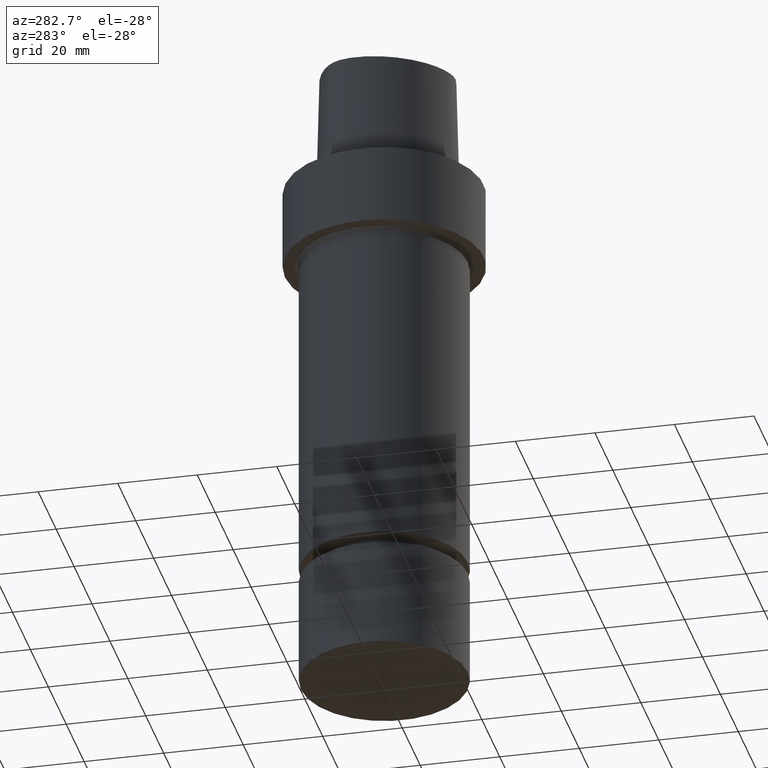
[diagram: clean part render]
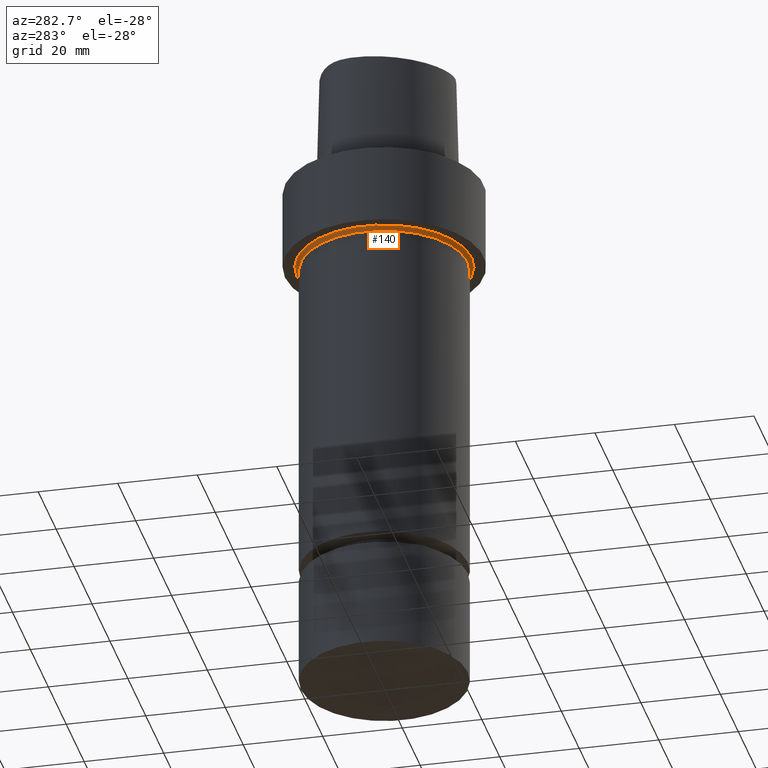
[diagram: same view with one face highlighted and labeled with its STEP entity id]
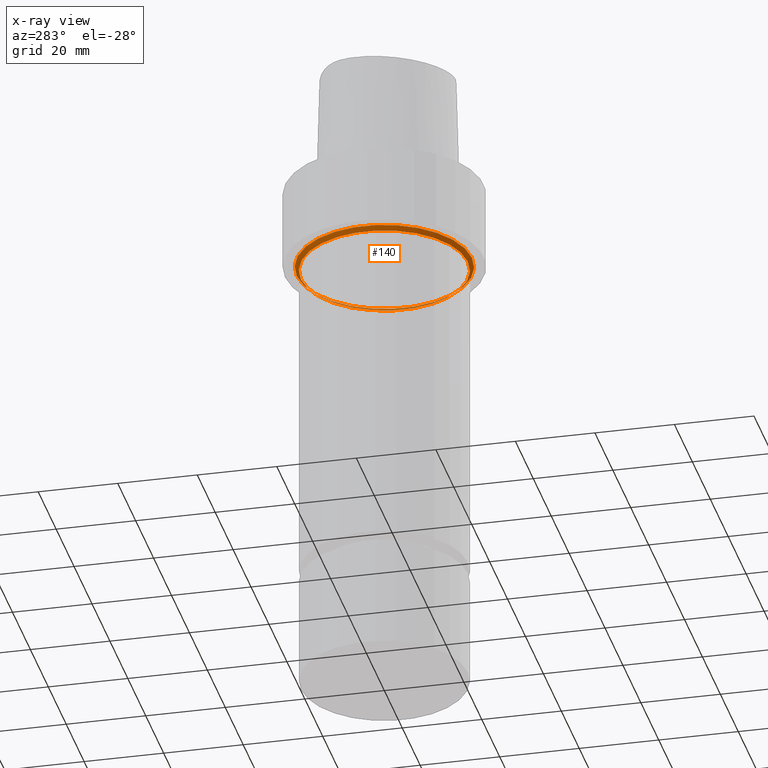
[diagram: x-ray of the same camera — body ghosted, the highlighted face saturated]
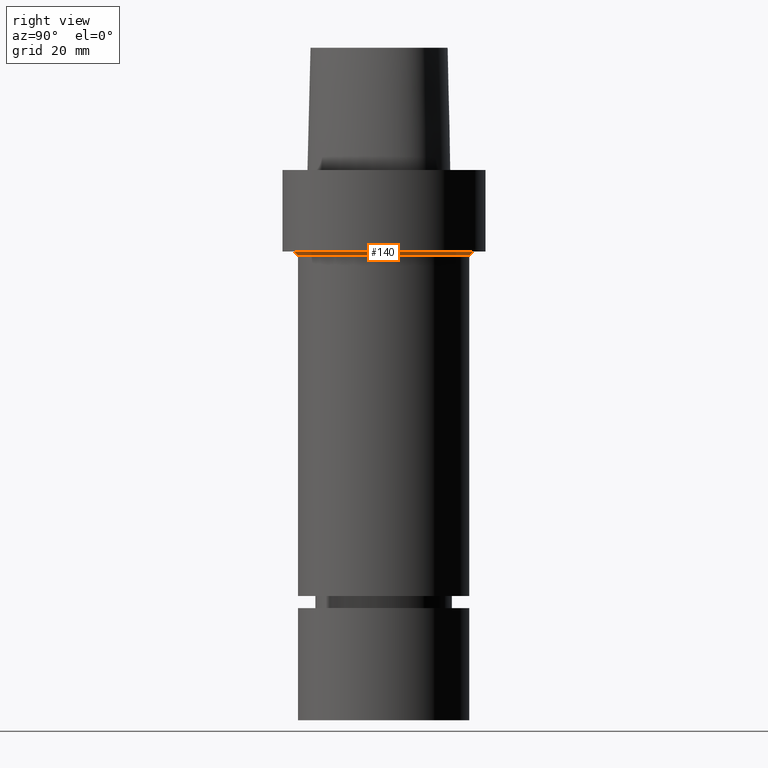
[diagram: same view with one face highlighted and labeled with its STEP entity id]
A machine part, auxiliary view. The second image highlights one B-rep face of the part: STEP entity #140.
The next image is the same camera in x-ray: the body ghosted, the highlighted face saturated — about 14% of this face is hidden behind the body in this view.
A second angle (right view) of the same face is appended — the face is thin or edge-on in the first view.
In plain terms, the highlighted conical surface has half-angle 45 deg.
Its self-contained STEP definition (entity closure, byte-faithful):
#79=EDGE_CURVE('Unnamed[1]',#188,#188,#189,.T.);
#106=EDGE_CURVE('Unnamed[1]',#230,#230,#231,.T.);
#140=ADVANCED_FACE('Unnamed[1]',(#277,#278),#279,.T.);
#188=VERTEX_POINT('',#330);
#189=CIRCLE('',#331,21.0000000000003);
#230=VERTEX_POINT('',#481);
#231=CIRCLE('',#482,22.0000000000003);
#277=FACE_BOUND('',#970,.T.);
#278=FACE_BOUND('',#971,.T.);
#279=CONICAL_SURFACE('',#972,21.5000000000003,0.785398163397448);
#330=CARTESIAN_POINT('',(1.28587913910472E-015,21.0000000000003,-21.0));
#331=AXIS2_PLACEMENT_3D('',#1012,#1013,#1014);
#481=CARTESIAN_POINT('',(1.22464679914735E-015,22.0000000000003,-20.0));
#482=AXIS2_PLACEMENT_3D('',#1053,#1054,#1055);
#970=EDGE_LOOP('',(#1099));
#971=EDGE_LOOP('',(#1100));
#972=AXIS2_PLACEMENT_3D('',#1101,#1102,#1103);
#1012=CARTESIAN_POINT('',(1.28587913910472E-015,2.57175827820944E-015,-21.0));
#1013=DIRECTION('',(6.12323399573677E-017,1.22464679914735E-016,-1.0));
#1014=DIRECTION('',(-1.23259516440783E-032,1.0,1.22464679914735E-016));
#1053=CARTESIAN_POINT('',(1.22464679914735E-015,2.44929359829471E-015,-20.0));
#1054=DIRECTION('',(6.12323399573677E-017,1.22464679914735E-016,-1.0));
#1055=DIRECTION('',(-1.23259516440783E-032,1.0,1.22464679914735E-016));
#1099=ORIENTED_EDGE('',*,*,#79,.F.);
#1100=ORIENTED_EDGE('',*,*,#106,.T.);
#1101=CARTESIAN_POINT('',(1.25526296912604E-015,2.51052593825207E-015,-20.5));
#1102=DIRECTION('',(-6.12323399573677E-017,-1.22464679914735E-016,1.0));
#1103=DIRECTION('',(-1.23259516440783E-032,1.0,1.22464679914735E-016));